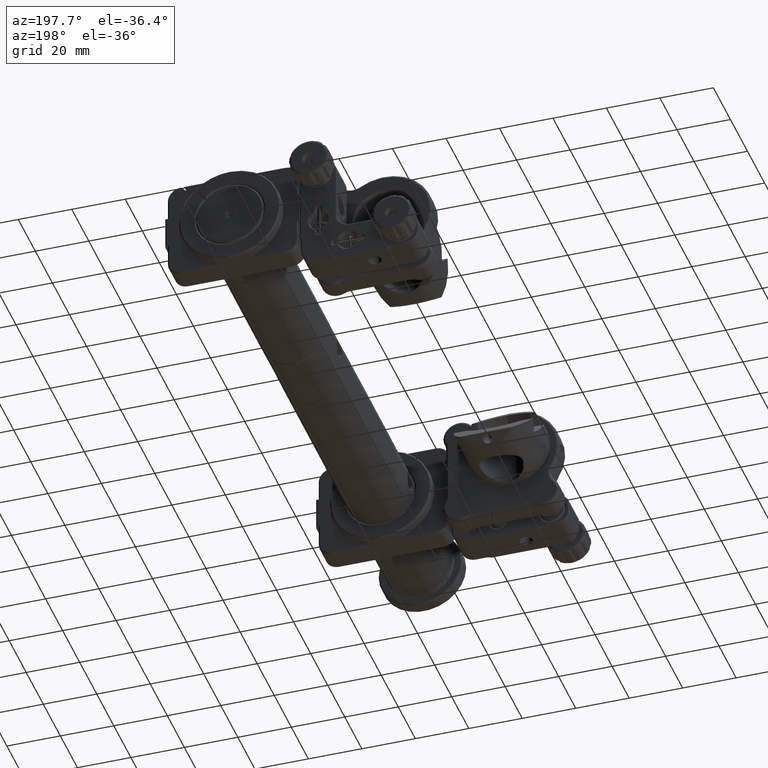
[diagram: clean part render]
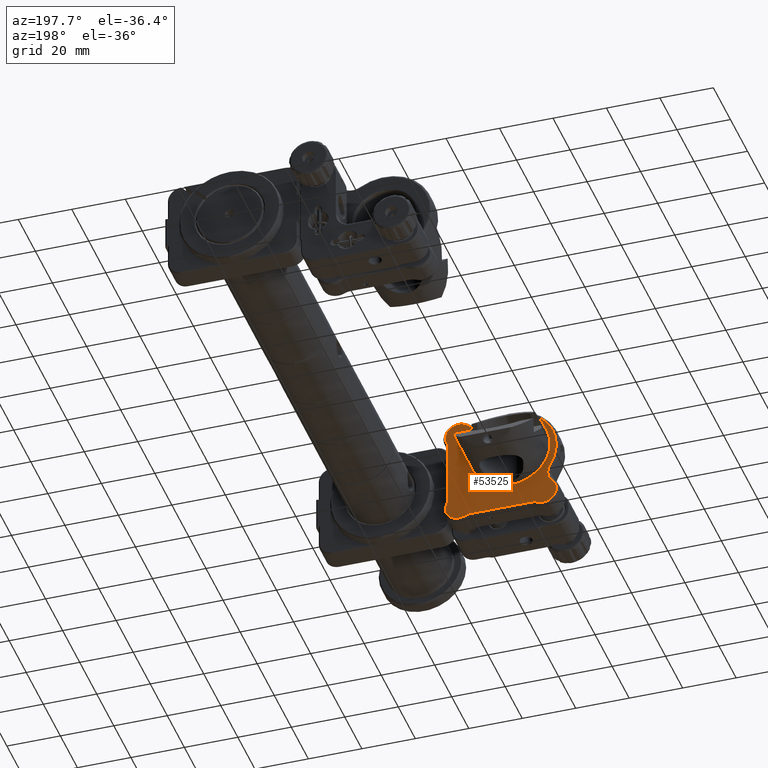
[diagram: same view with one face highlighted and labeled with its STEP entity id]
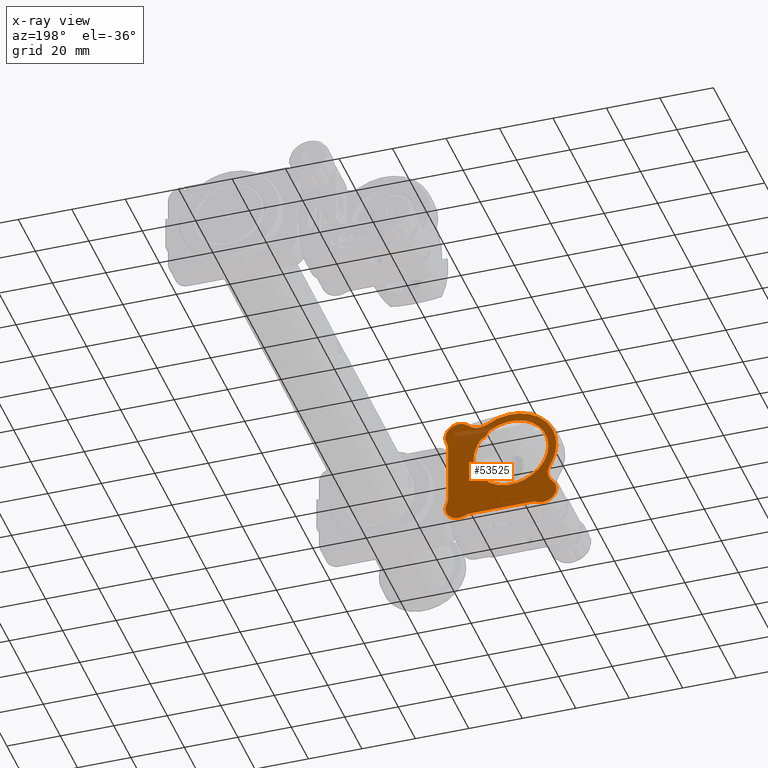
[diagram: x-ray of the same camera — body ghosted, the highlighted face saturated]
A machine part, auxiliary view. The second image highlights one B-rep face of the part: STEP entity #53525.
The next image is the same camera in x-ray: the body ghosted, the highlighted face saturated — about 9% of this face is hidden behind the body in this view.
In plain terms, the highlighted planar face has unit normal (-0, 1, -0).
Its self-contained STEP definition (entity closure, byte-faithful):
#26 = EDGE_CURVE ( 'NONE', #49155, #45375, #52829, .T. ) ;
#411 = CIRCLE ( 'NONE', #42937, 6.000000000000005300 ) ;
#440 = EDGE_CURVE ( 'NONE', #52083, #49498, #40081, .T. ) ;
#516 = ORIENTED_EDGE ( 'NONE', *, *, #56804, .T. ) ;
#576 = AXIS2_PLACEMENT_3D ( 'NONE', #19692, #5684, #46006 ) ;
#704 = EDGE_CURVE ( 'NONE', #8888, #52083, #28011, .T. ) ;
#1176 = CARTESIAN_POINT ( 'NONE',  ( -67.43858147670128700, -146.7747025247540500, -15.96751629405781400 ) ) ;
#1276 = VERTEX_POINT ( 'NONE', #11680 ) ;
#1315 = AXIS2_PLACEMENT_3D ( 'NONE', #33700, #42779, #42393 ) ;
#1658 = VERTEX_POINT ( 'NONE', #28613 ) ;
#1899 = AXIS2_PLACEMENT_3D ( 'NONE', #12568, #30785, #21670 ) ;
#1942 = VERTEX_POINT ( 'NONE', #31161 ) ;
#2195 = CARTESIAN_POINT ( 'NONE',  ( -61.81701104774732900, -146.7747025247540500, -24.04545454545445400 ) ) ;
#2264 = CIRCLE ( 'NONE', #1315, 5.999999999999998200 ) ;
#2359 = AXIS2_PLACEMENT_3D ( 'NONE', #8321, #53589, #4357 ) ;
#3311 = ORIENTED_EDGE ( 'NONE', *, *, #29451, .T. ) ;
#3543 = CARTESIAN_POINT ( 'NONE',  ( -45.82752885297074400, -146.7747025247540500, -9.171973297415169300 ) ) ;
#4232 = CARTESIAN_POINT ( 'NONE',  ( -71.68487924874288800, -146.7747025247540500, -11.72853584692732200 ) ) ;
#4308 = AXIS2_PLACEMENT_3D ( 'NONE', #21830, #39666, #53470 ) ;
#4357 = DIRECTION ( 'NONE',  ( 1.000000000000000000, 1.630640760066275000E-016, -1.700029006457271000E-015 ) ) ;
#4413 = CIRCLE ( 'NONE', #576, 6.000000000000005300 ) ;
#5684 = DIRECTION ( 'NONE',  ( 7.979734915974079500E-017, -1.000000000000000000, 3.528303658117416500E-031 ) ) ;
#5748 = CARTESIAN_POINT ( 'NONE',  ( -42.72802670258467100, -146.7747025247540500, -6.072471147029078900 ) ) ;
#5794 = CIRCLE ( 'NONE', #10752, 3.000000000000002700 ) ;
#6184 = CARTESIAN_POINT ( 'NONE',  ( -51.89999999999994200, -146.7747025247540500, 5.204170427930421300E-014 ) ) ;
#6449 = CIRCLE ( 'NONE', #14991, 14.00000000000000500 ) ;
#6803 = VERTEX_POINT ( 'NONE', #13088 ) ;
#7020 = AXIS2_PLACEMENT_3D ( 'NONE', #3543, #48428, #35189 ) ;
#7393 = AXIS2_PLACEMENT_3D ( 'NONE', #57445, #30588, #16708 ) ;
#7604 = ORIENTED_EDGE ( 'NONE', *, *, #21184, .T. ) ;
#7677 = CARTESIAN_POINT ( 'NONE',  ( -51.89999999999994200, -146.7747025247540500, 5.204170427930421300E-014 ) ) ;
#7897 = CARTESIAN_POINT ( 'NONE',  ( -45.82752885297070100, -146.7747025247540500, 9.171973297415256400 ) ) ;
#8321 = CARTESIAN_POINT ( 'NONE',  ( -36.98257569495584100, -146.7747025247540500, -29.49999999999995000 ) ) ;
#8685 = ORIENTED_EDGE ( 'NONE', *, *, #25486, .T. ) ;
#8888 = VERTEX_POINT ( 'NONE', #29565 ) ;
#9028 = CIRCLE ( 'NONE', #1899, 5.999999999999998200 ) ;
#9106 = CARTESIAN_POINT ( 'NONE',  ( -28.39999999999997400, -146.7747025247540500, -14.91742430504412900 ) ) ;
#9357 = ORIENTED_EDGE ( 'NONE', *, *, #13659, .T. ) ;
#10156 = AXIS2_PLACEMENT_3D ( 'NONE', #43477, #15952, #25288 ) ;
#10752 = AXIS2_PLACEMENT_3D ( 'NONE', #7897, #39558, #57313 ) ;
#10972 = DIRECTION ( 'NONE',  ( -7.979734915974079500E-017, 1.000000000000000000, -3.528303658117416500E-031 ) ) ;
#11106 = VERTEX_POINT ( 'NONE', #50044 ) ;
#11143 = CARTESIAN_POINT ( 'NONE',  ( -32.39999999999994200, -146.7747025247540500, 12.00000000000001400 ) ) ;
#11680 = CARTESIAN_POINT ( 'NONE',  ( -27.85454545454543400, -146.7747025247540500, -17.41701104774731600 ) ) ;
#12221 = CIRCLE ( 'NONE', #38434, 6.000000000000005300 ) ;
#12414 = ORIENTED_EDGE ( 'NONE', *, *, #33148, .T. ) ;
#12465 = EDGE_CURVE ( 'NONE', #45265, #31283, #22912, .T. ) ;
#12539 = CARTESIAN_POINT ( 'NONE',  ( -42.72802670258465000, -146.7747025247540500, 6.072471147029165900 ) ) ;
#12568 = CARTESIAN_POINT ( 'NONE',  ( -22.39999999999994900, -146.7747025247540500, 7.417424305044172600 ) ) ;
#12735 = DIRECTION ( 'NONE',  ( -7.979734915974079500E-017, 1.000000000000000000, -3.528303658117416500E-031 ) ) ;
#12882 = ORIENTED_EDGE ( 'NONE', *, *, #17509, .T. ) ;
#13088 = CARTESIAN_POINT ( 'NONE',  ( -27.85454545454539100, -146.7747025247540500, 9.917011047747362100 ) ) ;
#13480 = DIRECTION ( 'NONE',  ( 7.979734915974079500E-017, -1.000000000000000000, 3.528303658117416500E-031 ) ) ;
#13530 = DIRECTION ( 'NONE',  ( 1.000000000000000000, 0.0000000000000000000, -1.700029006457270600E-015 ) ) ;
#13594 = ORIENTED_EDGE ( 'NONE', *, *, #15875, .T. ) ;
#13659 = EDGE_CURVE ( 'NONE', #55191, #6803, #32019, .T. ) ;
#13861 = AXIS2_PLACEMENT_3D ( 'NONE', #33156, #10972, #51292 ) ;
#13972 = ORIENTED_EDGE ( 'NONE', *, *, #12465, .T. ) ;
#14427 = VERTEX_POINT ( 'NONE', #23801 ) ;
#14581 = EDGE_CURVE ( 'NONE', #56416, #55191, #44663, .T. ) ;
#14599 = ORIENTED_EDGE ( 'NONE', *, *, #14581, .T. ) ;
#14973 = AXIS2_PLACEMENT_3D ( 'NONE', #12539, #40422, #39658 ) ;
#14991 = AXIS2_PLACEMENT_3D ( 'NONE', #27009, #27206, #13530 ) ;
#15875 = EDGE_CURVE ( 'NONE', #53778, #50987, #411, .T. ) ;
#15952 = DIRECTION ( 'NONE',  ( 7.979734915974079500E-017, -1.000000000000000000, 3.528303658117416500E-031 ) ) ;
#15959 = CIRCLE ( 'NONE', #45134, 14.00000000000000500 ) ;
#16708 = DIRECTION ( 'NONE',  ( 1.000000000000000000, 0.0000000000000000000, -1.734723475976806500E-015 ) ) ;
#16742 = DIRECTION ( 'NONE',  ( -7.979734915974079500E-017, 1.000000000000000000, -3.528303658117416500E-031 ) ) ;
#17113 = EDGE_CURVE ( 'NONE', #45375, #56416, #12221, .T. ) ;
#17509 = EDGE_CURVE ( 'NONE', #50987, #49155, #4413, .T. ) ;
#18568 = DIRECTION ( 'NONE',  ( -1.263112170158102800E-015, -4.757910464228699400E-031, -1.000000000000000000 ) ) ;
#18852 = ORIENTED_EDGE ( 'NONE', *, *, #56023, .T. ) ;
#19467 = CARTESIAN_POINT ( 'NONE',  ( -28.39999999999997400, -146.7747025247540500, -14.91742430504412900 ) ) ;
#19680 = EDGE_CURVE ( 'NONE', #30989, #49723, #34690, .T. ) ;
#19692 = CARTESIAN_POINT ( 'NONE',  ( -71.68487924874288800, -146.7747025247540500, -11.72853584692732200 ) ) ;
#19694 = VECTOR ( 'NONE', #46518, 1000.000000000000000 ) ;
#20097 = CARTESIAN_POINT ( 'NONE',  ( -43.23108220009704900, -146.7747025247540500, 14.62360640124481600 ) ) ;
#20121 = AXIS2_PLACEMENT_3D ( 'NONE', #11143, #38858, #43396 ) ;
#21184 = EDGE_CURVE ( 'NONE', #6803, #45265, #9028, .T. ) ;
#21307 = DIRECTION ( 'NONE',  ( 7.979734915974079500E-017, -1.000000000000000000, 3.528303658117416500E-031 ) ) ;
#21500 = DIRECTION ( 'NONE',  ( 1.000000000000000000, 0.0000000000000000000, -7.029099524658020800E-015 ) ) ;
#21592 = CIRCLE ( 'NONE', #53128, 4.999999999999997300 ) ;
#21645 = CARTESIAN_POINT ( 'NONE',  ( -32.39999999999998400, -146.7747025247540500, -19.49999999999996100 ) ) ;
#21670 = DIRECTION ( 'NONE',  ( 1.000000000000000000, 0.0000000000000000000, -5.204170427930422900E-015 ) ) ;
#21692 = CIRCLE ( 'NONE', #4308, 5.000000000000004400 ) ;
#21724 = ORIENTED_EDGE ( 'NONE', *, *, #19680, .T. ) ;
#21830 = CARTESIAN_POINT ( 'NONE',  ( -63.89999999999998400, -146.7747025247540500, -19.49999999999990400 ) ) ;
#21853 = CARTESIAN_POINT ( 'NONE',  ( -41.75121068103383900, -146.7747025247540500, -8.908988458811540700 ) ) ;
#22134 = PLANE ( 'NONE',  #2359 ) ;
#22200 = VERTEX_POINT ( 'NONE', #45624 ) ;
#22912 = LINE ( 'NONE', #9106, #26515 ) ;
#23469 = CARTESIAN_POINT ( 'NONE',  ( -41.75121068103381100, -146.7747025247540500, 8.908988458811617100 ) ) ;
#23801 = CARTESIAN_POINT ( 'NONE',  ( -44.17140035832636600, -146.7747025247540500, 11.67342056034667200 ) ) ;
#24002 = CARTESIAN_POINT ( 'NONE',  ( -41.09999999999995900, -146.7747025247540500, -10.79999999999985500 ) ) ;
#24153 = DIRECTION ( 'NONE',  ( 7.979734915974079500E-017, -1.000000000000000000, 3.528303658117416500E-031 ) ) ;
#24684 = ORIENTED_EDGE ( 'NONE', *, *, #26, .T. ) ;
#25119 = DIRECTION ( 'NONE',  ( 1.000000000000000000, 0.0000000000000000000, -5.782411586589351700E-016 ) ) ;
#25288 = DIRECTION ( 'NONE',  ( 1.000000000000000000, 0.0000000000000000000, -5.782411586589355700E-016 ) ) ;
#25299 = EDGE_CURVE ( 'NONE', #30191, #53778, #21692, .T. ) ;
#25414 = CARTESIAN_POINT ( 'NONE',  ( -66.52360640124473400, -146.7747025247540500, -8.668917799902777300 ) ) ;
#25486 = EDGE_CURVE ( 'NONE', #1276, #43590, #48607, .T. ) ;
#26515 = VECTOR ( 'NONE', #18568, 1000.000000000000000 ) ;
#27009 = CARTESIAN_POINT ( 'NONE',  ( -51.89999999999994200, -146.7747025247540500, 5.204170427930421300E-014 ) ) ;
#27098 = VERTEX_POINT ( 'NONE', #28121 ) ;
#27206 = DIRECTION ( 'NONE',  ( 7.979734915974079500E-017, -1.000000000000000000, 3.528303658117416500E-031 ) ) ;
#27435 = CIRCLE ( 'NONE', #56409, 14.00000000000000500 ) ;
#28011 = CIRCLE ( 'NONE', #14973, 3.000000000000002700 ) ;
#28121 = CARTESIAN_POINT ( 'NONE',  ( -40.22657943965322900, -146.7747025247540500, -7.728599641673387300 ) ) ;
#28613 = CARTESIAN_POINT ( 'NONE',  ( -44.17140035832640900, -146.7747025247540500, -11.67342056034659600 ) ) ;
#29451 = EDGE_CURVE ( 'NONE', #14427, #1658, #6449, .T. ) ;
#29565 = CARTESIAN_POINT ( 'NONE',  ( -40.22657943965320700, -146.7747025247540500, 7.728599641673463700 ) ) ;
#29655 = LINE ( 'NONE', #37030, #19694 ) ;
#30191 = VERTEX_POINT ( 'NONE', #2195 ) ;
#30462 = DIRECTION ( 'NONE',  ( 7.979734915974079500E-017, -1.000000000000000000, 3.528303658117416500E-031 ) ) ;
#30506 = CIRCLE ( 'NONE', #7020, 3.000000000000002700 ) ;
#30588 = DIRECTION ( 'NONE',  ( 7.979734915974079500E-017, -1.000000000000000000, 3.528303658117416500E-031 ) ) ;
#30785 = DIRECTION ( 'NONE',  ( 7.979734915974079500E-017, -1.000000000000000000, 3.528303658117416500E-031 ) ) ;
#30818 = EDGE_CURVE ( 'NONE', #22200, #11106, #43857, .T. ) ;
#30989 = VERTEX_POINT ( 'NONE', #39119 ) ;
#31161 = CARTESIAN_POINT ( 'NONE',  ( -37.89999999999993500, -146.7747025247540500, 2.824129818890241000E-014 ) ) ;
#31283 = VERTEX_POINT ( 'NONE', #19467 ) ;
#31534 = ORIENTED_EDGE ( 'NONE', *, *, #45594, .T. ) ;
#31541 = EDGE_CURVE ( 'NONE', #11106, #40047, #29655, .T. ) ;
#32019 = CIRCLE ( 'NONE', #55726, 5.000000000000004400 ) ;
#32349 = DIRECTION ( 'NONE',  ( -7.979734915974079500E-017, 1.000000000000000000, -3.528303658117416500E-031 ) ) ;
#32646 = CARTESIAN_POINT ( 'NONE',  ( -59.31742430504415600, -146.7747025247540500, -23.49999999999991500 ) ) ;
#32684 = DIRECTION ( 'NONE',  ( 1.000000000000000000, 0.0000000000000000000, -1.700029006457271000E-015 ) ) ;
#33148 = EDGE_CURVE ( 'NONE', #27098, #1942, #27435, .T. ) ;
#33156 = CARTESIAN_POINT ( 'NONE',  ( -41.09999999999991600, -146.7747025247540500, 10.79999999999993100 ) ) ;
#33700 = CARTESIAN_POINT ( 'NONE',  ( -59.31742430504416300, -146.7747025247540500, -29.49999999999991100 ) ) ;
#34690 = CIRCLE ( 'NONE', #55196, 2.000000000000001800 ) ;
#34796 = ORIENTED_EDGE ( 'NONE', *, *, #49481, .T. ) ;
#35189 = DIRECTION ( 'NONE',  ( 1.000000000000000000, 0.0000000000000000000, -8.095376221225092400E-015 ) ) ;
#35831 = CARTESIAN_POINT ( 'NONE',  ( -27.39999999999993800, -146.7747025247540500, 12.00000000000000400 ) ) ;
#36307 = AXIS2_PLACEMENT_3D ( 'NONE', #5748, #41930, #55549 ) ;
#37017 = CIRCLE ( 'NONE', #7393, 6.000000000000001800 ) ;
#37030 = CARTESIAN_POINT ( 'NONE',  ( -36.98257569495582700, -146.7747025247540500, -23.49999999999995000 ) ) ;
#37133 = ORIENTED_EDGE ( 'NONE', *, *, #30818, .T. ) ;
#37664 = AXIS2_PLACEMENT_3D ( 'NONE', #21645, #12735, #54547 ) ;
#38376 = ORIENTED_EDGE ( 'NONE', *, *, #25299, .T. ) ;
#38434 = AXIS2_PLACEMENT_3D ( 'NONE', #57511, #30462, #25119 ) ;
#38511 = AXIS2_PLACEMENT_3D ( 'NONE', #53341, #16742, #44450 ) ;
#38858 = DIRECTION ( 'NONE',  ( -7.979734915974079500E-017, 1.000000000000000000, -3.528303658117416500E-031 ) ) ;
#39119 = CARTESIAN_POINT ( 'NONE',  ( -42.99101154118827100, -146.7747025247540500, -10.14878931896598000 ) ) ;
#39220 = CARTESIAN_POINT ( 'NONE',  ( -27.39999999999998800, -146.7747025247540500, -19.49999999999996800 ) ) ;
#39558 = DIRECTION ( 'NONE',  ( 7.979734915974079500E-017, -1.000000000000000000, 3.528303658117416500E-031 ) ) ;
#39658 = DIRECTION ( 'NONE',  ( 1.000000000000000000, 0.0000000000000000000, 0.0000000000000000000 ) ) ;
#39666 = DIRECTION ( 'NONE',  ( -7.979734915974079500E-017, 1.000000000000000000, -3.528303658117416500E-031 ) ) ;
#40038 = DIRECTION ( 'NONE',  ( 1.000000000000000000, 0.0000000000000000000, 6.360652745248286900E-015 ) ) ;
#40047 = VERTEX_POINT ( 'NONE', #32646 ) ;
#40081 = CIRCLE ( 'NONE', #13861, 2.000000000000001800 ) ;
#40355 = DIRECTION ( 'NONE',  ( 1.000000000000000000, 0.0000000000000000000, -1.734723475976805500E-015 ) ) ;
#40422 = DIRECTION ( 'NONE',  ( 7.979734915974079500E-017, -1.000000000000000000, 3.528303658117416500E-031 ) ) ;
#41432 = ORIENTED_EDGE ( 'NONE', *, *, #46182, .T. ) ;
#41930 = DIRECTION ( 'NONE',  ( 7.979734915974079500E-017, -1.000000000000000000, 3.528303658117416500E-031 ) ) ;
#42262 = ORIENTED_EDGE ( 'NONE', *, *, #43315, .T. ) ;
#42393 = DIRECTION ( 'NONE',  ( 1.000000000000000000, 0.0000000000000000000, -5.782411586589358600E-016 ) ) ;
#42779 = DIRECTION ( 'NONE',  ( 7.979734915974079500E-017, -1.000000000000000000, 3.528303658117416500E-031 ) ) ;
#42806 = ORIENTED_EDGE ( 'NONE', *, *, #31541, .T. ) ;
#42833 = FACE_OUTER_BOUND ( 'NONE', #51559, .T. ) ;
#42937 = AXIS2_PLACEMENT_3D ( 'NONE', #4232, #13480, #40038 ) ;
#43315 = EDGE_CURVE ( 'NONE', #43590, #22200, #21592, .T. ) ;
#43396 = DIRECTION ( 'NONE',  ( 1.000000000000000000, 0.0000000000000000000, -1.734723475976805500E-015 ) ) ;
#43477 = CARTESIAN_POINT ( 'NONE',  ( -36.98257569495584100, -146.7747025247540500, -29.49999999999995000 ) ) ;
#43518 = EDGE_LOOP ( 'NONE', ( #3311, #516, #21724, #34796, #12414, #53858, #56817, #47250, #41432 ) ) ;
#43590 = VERTEX_POINT ( 'NONE', #39220 ) ;
#43857 = CIRCLE ( 'NONE', #10156, 6.000000000000001800 ) ;
#44450 = DIRECTION ( 'NONE',  ( 1.000000000000000000, 0.0000000000000000000, -1.700029006457271000E-015 ) ) ;
#44663 = CIRCLE ( 'NONE', #20121, 5.000000000000004400 ) ;
#45134 = AXIS2_PLACEMENT_3D ( 'NONE', #6184, #24153, #32684 ) ;
#45265 = VERTEX_POINT ( 'NONE', #55100 ) ;
#45375 = VERTEX_POINT ( 'NONE', #20097 ) ;
#45594 = EDGE_CURVE ( 'NONE', #31283, #1276, #37017, .T. ) ;
#45624 = CARTESIAN_POINT ( 'NONE',  ( -34.48298895225264700, -146.7747025247540500, -24.04545454545449700 ) ) ;
#46006 = DIRECTION ( 'NONE',  ( 1.000000000000000000, 0.0000000000000000000, -1.734723475976805500E-015 ) ) ;
#46182 = EDGE_CURVE ( 'NONE', #49498, #14427, #5794, .T. ) ;
#46518 = DIRECTION ( 'NONE',  ( -1.000000000000000000, -1.630640760066275000E-016, 1.700029006457271000E-015 ) ) ;
#47250 = ORIENTED_EDGE ( 'NONE', *, *, #440, .T. ) ;
#47621 = DIRECTION ( 'NONE',  ( 1.000000000000000000, 0.0000000000000000000, -1.387778780781446500E-015 ) ) ;
#47830 = DIRECTION ( 'NONE',  ( -7.979734915974079500E-017, 1.000000000000000000, -3.528303658117416500E-031 ) ) ;
#48428 = DIRECTION ( 'NONE',  ( 7.979734915974079500E-017, -1.000000000000000000, 3.528303658117416500E-031 ) ) ;
#48521 = FACE_BOUND ( 'NONE', #43518, .T. ) ;
#48607 = CIRCLE ( 'NONE', #37664, 4.999999999999997300 ) ;
#49155 = VERTEX_POINT ( 'NONE', #25414 ) ;
#49420 = CARTESIAN_POINT ( 'NONE',  ( -65.68487924874288800, -146.7747025247540500, -11.72853584692733300 ) ) ;
#49481 = EDGE_CURVE ( 'NONE', #49723, #27098, #57146, .T. ) ;
#49498 = VERTEX_POINT ( 'NONE', #50993 ) ;
#49723 = VERTEX_POINT ( 'NONE', #21853 ) ;
#50002 = DIRECTION ( 'NONE',  ( -7.979734915974079500E-017, 1.000000000000000000, -3.528303658117416500E-031 ) ) ;
#50044 = CARTESIAN_POINT ( 'NONE',  ( -36.98257569495582700, -146.7747025247540500, -23.49999999999995000 ) ) ;
#50987 = VERTEX_POINT ( 'NONE', #49420 ) ;
#50993 = CARTESIAN_POINT ( 'NONE',  ( -42.99101154118822900, -146.7747025247540500, 10.14878931896605600 ) ) ;
#51292 = DIRECTION ( 'NONE',  ( 1.000000000000000000, 0.0000000000000000000, -1.734723475976805500E-015 ) ) ;
#51559 = EDGE_LOOP ( 'NONE', ( #8685, #42262, #37133, #42806, #18852, #38376, #13594, #12882, #24684, #58411, #14599, #9357, #7604, #13972, #31534 ) ) ;
#52083 = VERTEX_POINT ( 'NONE', #23469 ) ;
#52829 = CIRCLE ( 'NONE', #38511, 17.00000000000000000 ) ;
#53097 = EDGE_CURVE ( 'NONE', #1942, #8888, #15959, .T. ) ;
#53128 = AXIS2_PLACEMENT_3D ( 'NONE', #56687, #47830, #47621 ) ;
#53341 = CARTESIAN_POINT ( 'NONE',  ( -51.89999999999994200, -146.7747025247540500, 5.204170427930421300E-014 ) ) ;
#53470 = DIRECTION ( 'NONE',  ( 1.000000000000000000, 0.0000000000000000000, -1.387778780781444500E-015 ) ) ;
#53525 = ADVANCED_FACE ( 'NONE', ( #48521, #42833 ), #22134, .T. ) ;
#53589 = DIRECTION ( 'NONE',  ( -1.630640760066275000E-016, 1.000000000000000000, -2.112745148992798600E-031 ) ) ;
#53778 = VERTEX_POINT ( 'NONE', #1176 ) ;
#53858 = ORIENTED_EDGE ( 'NONE', *, *, #53097, .T. ) ;
#53957 = CARTESIAN_POINT ( 'NONE',  ( -32.39999999999994200, -146.7747025247540500, 12.00000000000001400 ) ) ;
#54180 = CARTESIAN_POINT ( 'NONE',  ( -35.93248370594200500, -146.7747025247540500, 15.53858147670135800 ) ) ;
#54547 = DIRECTION ( 'NONE',  ( 1.000000000000000000, 0.0000000000000000000, -1.387778780781446500E-015 ) ) ;
#55047 = DIRECTION ( 'NONE',  ( 1.000000000000000000, 0.0000000000000000000, -1.734723475976805500E-015 ) ) ;
#55100 = CARTESIAN_POINT ( 'NONE',  ( -28.39999999999994500, -146.7747025247540500, 7.417424305044179700 ) ) ;
#55191 = VERTEX_POINT ( 'NONE', #35831 ) ;
#55196 = AXIS2_PLACEMENT_3D ( 'NONE', #24002, #32349, #55047 ) ;
#55549 = DIRECTION ( 'NONE',  ( 1.000000000000000000, 0.0000000000000000000, -9.830099697201897900E-015 ) ) ;
#55726 = AXIS2_PLACEMENT_3D ( 'NONE', #53957, #50002, #40355 ) ;
#56023 = EDGE_CURVE ( 'NONE', #40047, #30191, #2264, .T. ) ;
#56409 = AXIS2_PLACEMENT_3D ( 'NONE', #7677, #21307, #21500 ) ;
#56416 = VERTEX_POINT ( 'NONE', #54180 ) ;
#56687 = CARTESIAN_POINT ( 'NONE',  ( -32.39999999999998400, -146.7747025247540500, -19.49999999999996100 ) ) ;
#56804 = EDGE_CURVE ( 'NONE', #1658, #30989, #30506, .T. ) ;
#56817 = ORIENTED_EDGE ( 'NONE', *, *, #704, .T. ) ;
#57146 = CIRCLE ( 'NONE', #36307, 3.000000000000002700 ) ;
#57313 = DIRECTION ( 'NONE',  ( 1.000000000000000000, 0.0000000000000000000, -1.734723475976805500E-015 ) ) ;
#57445 = CARTESIAN_POINT ( 'NONE',  ( -22.39999999999997700, -146.7747025247540500, -14.91742430504414000 ) ) ;
#57511 = CARTESIAN_POINT ( 'NONE',  ( -40.17146415307249200, -146.7747025247540500, 19.78487924874296400 ) ) ;
#58411 = ORIENTED_EDGE ( 'NONE', *, *, #17113, .T. ) ;